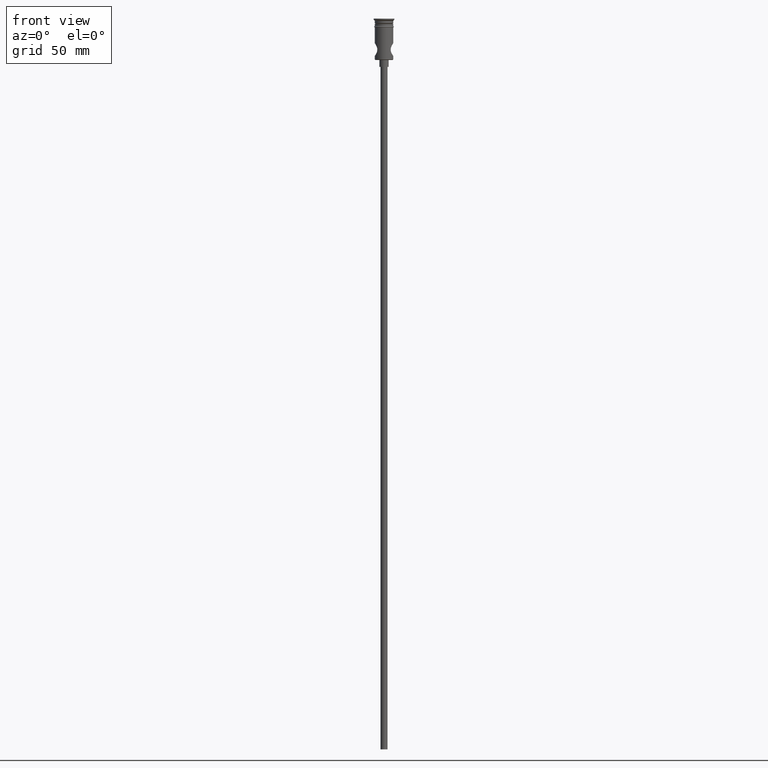
[diagram: clean part render]
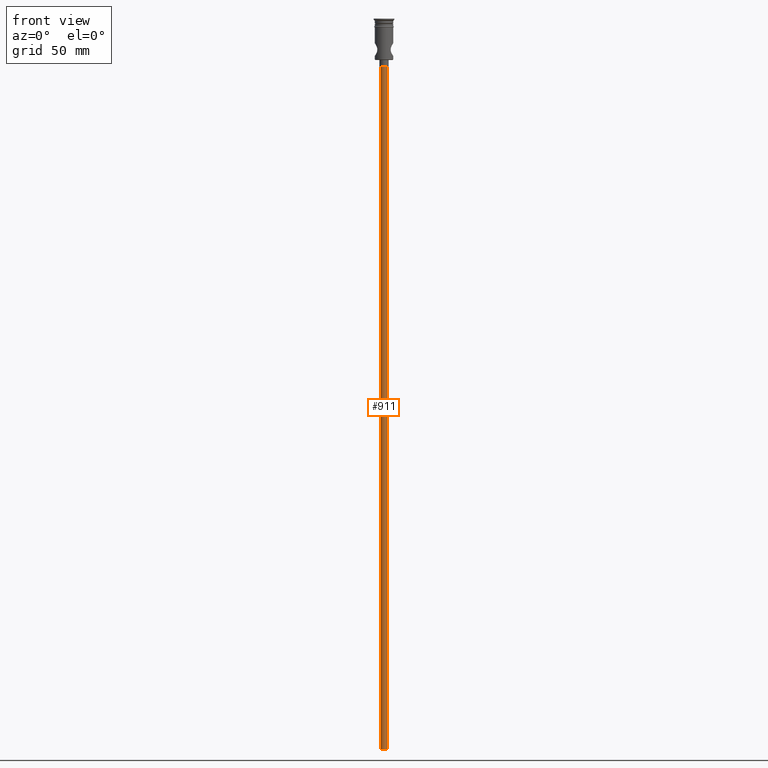
[diagram: same view with one face highlighted and labeled with its STEP entity id]
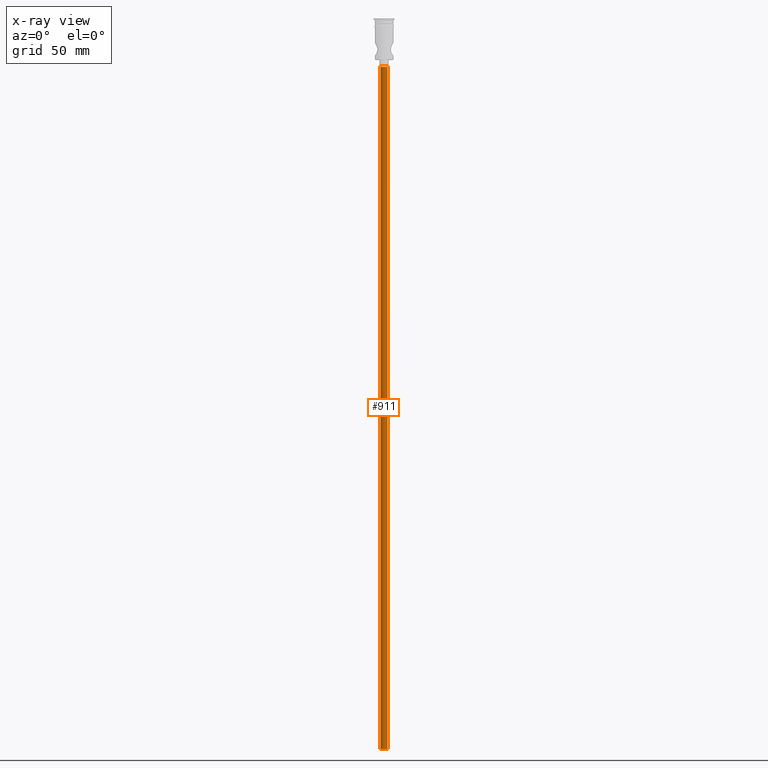
[diagram: x-ray of the same camera — body ghosted, the highlighted face saturated]
A machine part, front view. The second image highlights one B-rep face of the part: STEP entity #911.
The next image is the same camera in x-ray: the body ghosted, the highlighted face saturated — about 0% of this face is hidden behind the body in this view.
In plain terms, the highlighted cylindrical surface (edge-blend (fillet) strip) has radius 1.5 mm, axis along (-0, -0, 1).
Its self-contained STEP definition (entity closure, byte-faithful):
#110 = CIRCLE ( 'NONE', #273, 1.500000000000000222 ) ;
#117 = DIRECTION ( 'NONE',  ( -1.000000000000000000, 0.000000000000000000, 0.000000000000000000 ) ) ;
#125 = EDGE_CURVE ( 'NONE', #787, #1322, #1185, .T. ) ;
#126 = DIRECTION ( 'NONE',  ( 0.000000000000000000, 0.000000000000000000, -1.000000000000000000 ) ) ;
#142 = EDGE_LOOP ( 'NONE', ( #828, #400, #855, #431 ) ) ;
#177 = VECTOR ( 'NONE', #1267, 1000.000000000000000 ) ;
#256 = CARTESIAN_POINT ( 'NONE',  ( 0.000000000000000000, 0.000000000000000000, -318.0000000000000000 ) ) ;
#273 = AXIS2_PLACEMENT_3D ( 'NONE', #1088, #126, #1009 ) ;
#276 = FACE_OUTER_BOUND ( 'NONE', #142, .T. ) ;
#327 = CARTESIAN_POINT ( 'NONE',  ( 1.500000000000000222, 0.000000000000000000, -20.99999999999999645 ) ) ;
#358 = CARTESIAN_POINT ( 'NONE',  ( -1.500000000000000222, 1.836970198721030181E-16, -20.99999999999999645 ) ) ;
#373 = CYLINDRICAL_SURFACE ( 'NONE', #988, 1.500000000000000222 ) ;
#400 = ORIENTED_EDGE ( 'NONE', *, *, #125, .F. ) ;
#431 = ORIENTED_EDGE ( 'NONE', *, *, #1097, .T. ) ;
#459 = VECTOR ( 'NONE', #1040, 1000.000000000000000 ) ;
#470 = CARTESIAN_POINT ( 'NONE',  ( 0.000000000000000000, 0.000000000000000000, -318.0000000000000000 ) ) ;
#528 = EDGE_CURVE ( 'NONE', #1322, #743, #601, .T. ) ;
#591 = DIRECTION ( 'NONE',  ( -0.000000000000000000, -0.000000000000000000, 1.000000000000000000 ) ) ;
#601 = LINE ( 'NONE', #827, #177 ) ;
#684 = AXIS2_PLACEMENT_3D ( 'NONE', #256, #697, #117 ) ;
#697 = DIRECTION ( 'NONE',  ( 0.000000000000000000, 0.000000000000000000, -1.000000000000000000 ) ) ;
#743 = VERTEX_POINT ( 'NONE', #358 ) ;
#787 = VERTEX_POINT ( 'NONE', #1029 ) ;
#827 = CARTESIAN_POINT ( 'NONE',  ( -1.500000000000000222, 1.836970198721030181E-16, -318.0000000000000000 ) ) ;
#828 = ORIENTED_EDGE ( 'NONE', *, *, #528, .F. ) ;
#837 = LINE ( 'NONE', #1063, #459 ) ;
#855 = ORIENTED_EDGE ( 'NONE', *, *, #1303, .T. ) ;
#911 = ADVANCED_FACE ( 'NONE', ( #276 ), #373, .T. ) ;
#954 = CARTESIAN_POINT ( 'NONE',  ( -1.500000000000000222, 1.836970198721030181E-16, -318.0000000000000000 ) ) ;
#988 = AXIS2_PLACEMENT_3D ( 'NONE', #470, #591, #1148 ) ;
#1009 = DIRECTION ( 'NONE',  ( -1.000000000000000000, 0.000000000000000000, 0.000000000000000000 ) ) ;
#1029 = CARTESIAN_POINT ( 'NONE',  ( 1.500000000000000222, 0.000000000000000000, -318.0000000000000000 ) ) ;
#1040 = DIRECTION ( 'NONE',  ( -0.000000000000000000, -0.000000000000000000, 1.000000000000000000 ) ) ;
#1063 = CARTESIAN_POINT ( 'NONE',  ( 1.500000000000000222, 0.000000000000000000, -318.0000000000000000 ) ) ;
#1088 = CARTESIAN_POINT ( 'NONE',  ( 0.000000000000000000, 0.000000000000000000, -20.99999999999999645 ) ) ;
#1097 = EDGE_CURVE ( 'NONE', #1382, #743, #110, .T. ) ;
#1148 = DIRECTION ( 'NONE',  ( 1.000000000000000000, 0.000000000000000000, 0.000000000000000000 ) ) ;
#1185 = CIRCLE ( 'NONE', #684, 1.500000000000000222 ) ;
#1267 = DIRECTION ( 'NONE',  ( -0.000000000000000000, -0.000000000000000000, 1.000000000000000000 ) ) ;
#1303 = EDGE_CURVE ( 'NONE', #787, #1382, #837, .T. ) ;
#1322 = VERTEX_POINT ( 'NONE', #954 ) ;
#1382 = VERTEX_POINT ( 'NONE', #327 ) ;